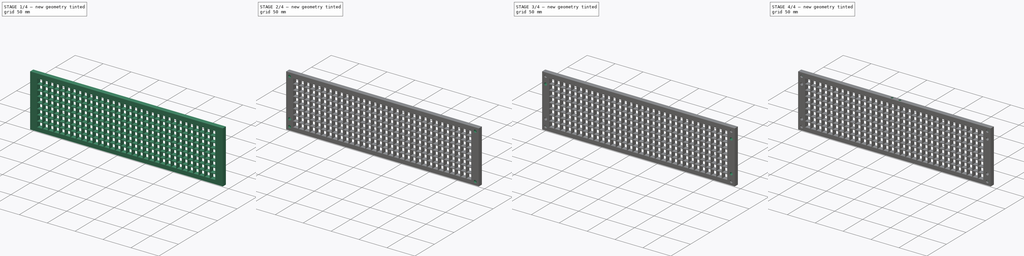
[diagram: build sequence overview — one tinted view per stage of 4, left to right]
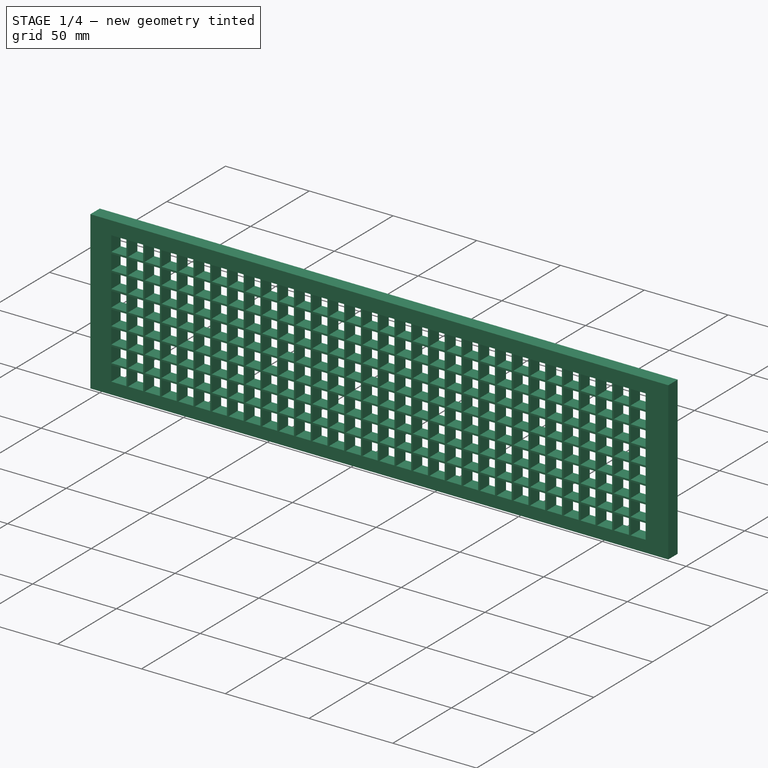
[diagram: stage 1 of 4 — iso view after this stage's code; geometry added in this stage tinted green]
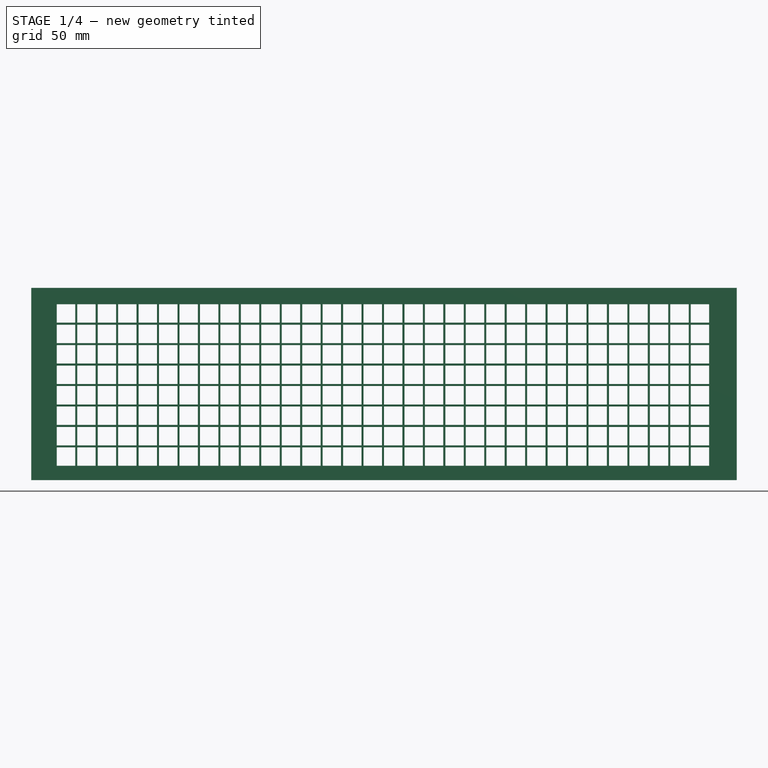
[diagram: stage 1 of 4 — front view after this stage's code; geometry added in this stage tinted green]
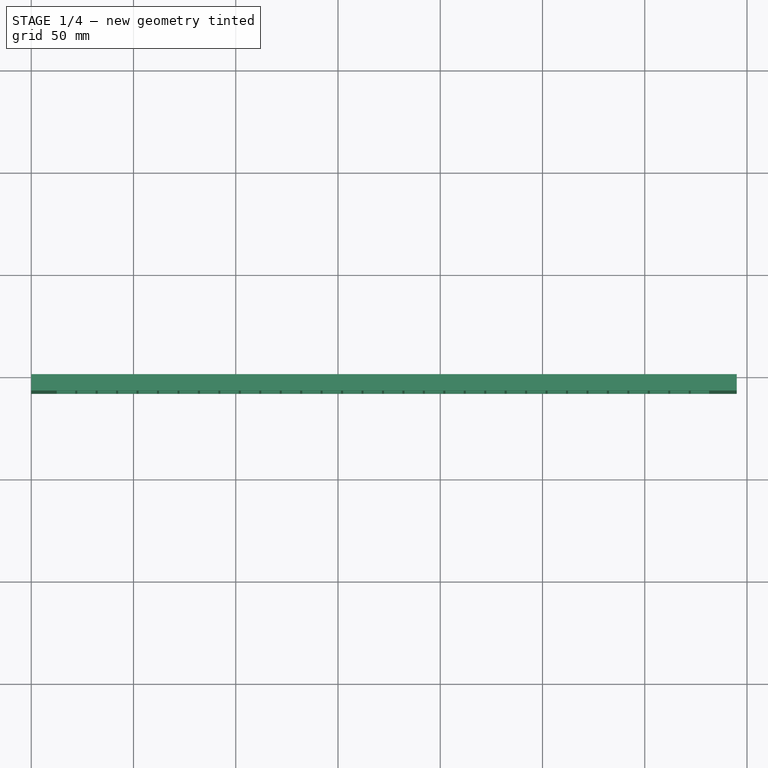
[diagram: stage 1 of 4 — top view after this stage's code; geometry added in this stage tinted green]
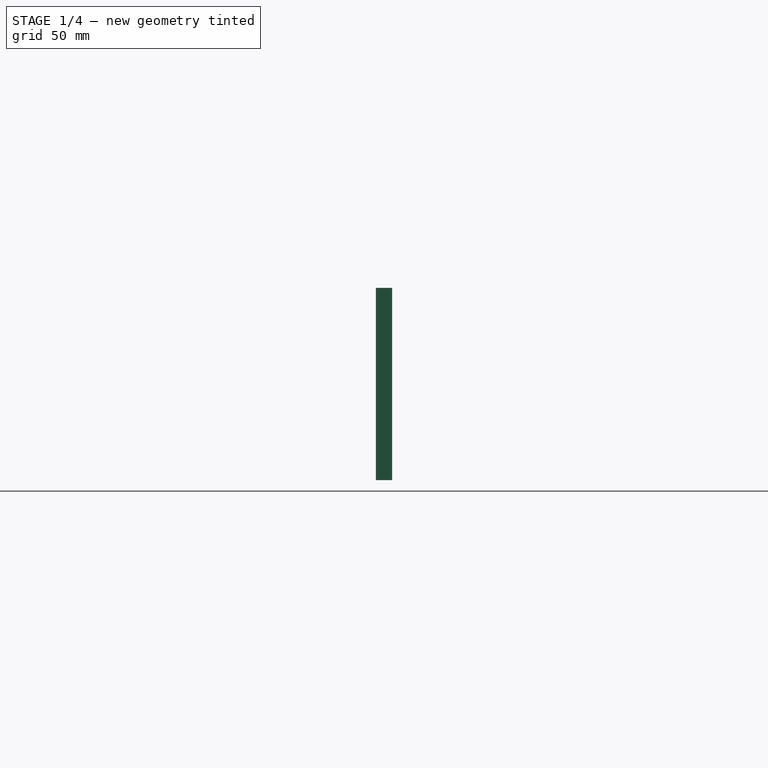
[diagram: stage 1 of 4 — right view after this stage's code; geometry added in this stage tinted green]
FCSTD DOCUMENT  (FreeCAD 1.0R39109 (Git))
Label: grid
License: All rights reserved
LicenseURL: https://en.wikipedia.org/wiki/All_rights_reserved
objects: Sketcher::SketchObject×7, PartDesign::Mirrored×6, PartDesign::Pocket×6, PartDesign::Plane×4, PartDesign::MultiTransform×4, Spreadsheet::Sheet×2, PartDesign::LinearPattern×2, PartDesign::Pad×1, PartDesign::Body×1
note: 64 computed .brp shape members not serialized (recipe doc carries the construction recipe); baked Part::Feature solids carry a one-line shape summary decoded from their .brp

FEATURE [Spreadsheet::Sheet] Spreadsheet  label="GridDisplaySS"
  Body = 0
  cells = A1='Variant; B1='case_depth; C1='matrix_height; D1='matrix_width; E1='matrix_depth; F1='threaded_insert_depth; G1='threaded_insert_outer_diameter; H1='threaded_insert_safety_zone; I1='case_thickness; J1='grid_border_thickness; K1='grid_depth; L1='grid_intercell_spacing; M1='grid_cell_width; N1='led_x_count; O1='led_y_count; P1='grid_countersink_hole_depth; Q1='magnet_diameter; R1='magnet_height; S1='printer_tolerance_modifier; T1='screw_diameter; U1='mount_panel_exclusion_offset; V1='glass_thickness; W1='top_component_offset; X1='photoresistor_diameter; Y1='photoresistor_truncated_width; Z1='photoresistor_height; AA1='top_component_horizontal_offset; AB1='top_component_spacing; AC1='photoresistor_ledge_size; AD1='back_plate_thickness; A2==hiddenref(.Body.String); B2(case_depth)==.B3; C2(matrix_height)==.C3; D2(matrix_width)==.D3; E2(matrix_depth)==.E3; F2(threaded_insert_depth)==.F3; G2(threaded_insert_outer_diameter)==.G3; H2(threaded_insert_safety_zone)==.H3; I2(case_thickness)==.I3; J2(grid_border_thickness)==.J3; K2(grid_depth)==.K3; L2(grid_intercell_spacing)==.L3; M2(grid_cell_width)==.M3; N2(led_x_count)==.N3; O2(led_y_count)==.O3; P2(grid_countersink_hole_depth)==.P3; Q2(magnet_diameter)==.Q3; R2(magnet_height)==.R3; S2(printer_tolerance_modifier)==.S3; T2(screw_diameter)==.T3; U2(mount_panel_exclusion_offset)==.U3; V2(glass_thickness)==.V3; W2(top_component_offset)==.W3; X2(photoresistor_diameter)==.X3; Y2(photoresistor_truncated_width)==.Y3; Z2(photoresistor_height)==.Z3; AA2(top_component_horizontal_offset)==.AA3; AB2(top_component_spacing)==.AB3; AC2(photoresistor_ledge_size)==.AC3; AD2(back_plate_thickness)==.AD3; A3='A; B3==6 cm; C3==80 mm; D3==320 mm; E3==2 mm; F3==4 mm; G3==5 mm; H3==2 mm; I3==2 mm; J3==3 mm; K3==8 mm; L3==1 mm; M3==9 mm; N3=32; O3=8; P3==3 mm; Q3==5 mm; R3==2.8 mm; S3==1 mm; T3==2 mm; U3==2 cm; V3==3 mm; W3==2 cm; X3==5.1 mm; Y3==4.5 mm; Z3==2.4 mm; AA3==2 cm; AB3==0.5 cm; AC3==3 mm; AD3==4 mm
  expr: .Body.Enum = cells[<<A3:|>>]
  expr: .cells.Bind.B2.ZZ2 = tuple(.cells; <<B>> + str(hiddenref(Body) + 3); <<ZZ>> + str(hiddenref(Body) + 3))
FEATURE [Spreadsheet::Sheet] Spreadsheet001  label="GridCalculatedSS"
  cells = B1='grid_horizontal_padding; C1='grid_vertical_padding; D1='case_height; E1='case_width; F1='grid_width; G1='grid_height; H1='grid_matrix_width; I1='grid_matrix_height; J1='screw_horizontal_offset; K1='screw_vertical_offset; L1='grid_magnet_vertical_offset; M1='grid_magnet_horizontal_offset; N1='grid_magnet_depth; O1='case_clear_opening_height; P1='case_clear_opening_width; Q1='mounting_plate_thickness; R1='mount_bracket_face_size; S1='case_relative_magnet_horizontal_offset; T1='case_relative_magnet_vertical_offset; U1='split_offset; V1='screw_offset; W1='screw_diameter; X1='screw_depth; B2(grid_horizontal_padding)==<<GridDisplaySS>>.threaded_insert_outer_diameter + <<GridDisplaySS>>.threaded_insert_safety_zone * 2 + <<GridDisplaySS>>.grid_border_thickness + <<GridDisplaySS>>.grid_intercell_spacing / 2; C2(grid_vertical_padding)==screw_depth + 2 mm; D2(case_height)==grid_height + <<GridDisplaySS>>.case_thickness * 2; E2(case_width)==grid_width + <<GridDisplaySS>>.case_thickness * 2; F2(grid_width)==grid_horizontal_padding * 2 + <<GridDisplaySS>>.matrix_width; G2(grid_height)==grid_vertical_padding * 2 + <<GridDisplaySS>>.matrix_height; H2(grid_matrix_width)==grid_width - 2 * grid_horizontal_padding - 10 mm; I2(grid_matrix_height)=70; J2(screw_horizontal_offset)==grid_horizontal_padding / 2; K2(screw_vertical_offset)==mount_bracket_face_size / 2; L2(grid_magnet_vertical_offset)==grid_height / 5; M2(grid_magnet_horizontal_offset)==grid_horizontal_padding / 2; N2(grid_magnet_depth)==<<GridDisplaySS>>.magnet_height * 2; O2(case_clear_opening_height)==grid_height; P2(case_clear_opening_width)==grid_width; Q2(mounting_plate_thickness)==<<GridDisplaySS>>.matrix_depth + 3 mm; R2(mount_bracket_face_size)==screw_horizontal_offset * 2; S2(case_relative_magnet_horizontal_offset)==grid_magnet_horizontal_offset + <<GridDisplaySS>>.case_thickness; T2(case_relative_magnet_vertical_offset)==grid_magnet_vertical_offset + <<GridDisplaySS>>.case_thickness; U2(split_offset)==grid_width / 2; V2(screw_offset)==screw_diameter + 3 mm; W2(screw_diameter)==4 mm; X2(screw_depth)==5 mm
FEATURE [PartDesign::Plane] DatumPlane003  label="Horizontal Dividing Plane"
  AttachmentOffset = pos=(0,0,-47) rot=(0,0,1;0rad)
  AttachmentSupport = -> [XZ_Plane001]
  Length = 397.203
  MapMode = 3
  Placement = pos=(0,0,47) rot=(1,0,0;3.14159rad)
  ResizeMode = 0
  Width = 77.2029
  expr: .AttachmentOffset.Base.z = <<GridCalculatedSS>>.grid_height / 2 * -1
FEATURE [PartDesign::Mirrored] Mirrored006
  MirrorPlane = -> DatumPlane003
  Placement = pos=(0,0,0) rot=(1,0,0;1.5708rad)
  Refine = true
  Suppressed = false
  TransformMode = 0
FEATURE [PartDesign::Plane] DatumPlane002  label="Vertical Dividing Plane"
  AttachmentOffset = pos=(0,0,172.5) rot=(0,0,1;0rad)
  AttachmentSupport = -> [XZ_Plane001]
  Length = 134.427
  MapMode = 4
  Placement = pos=(172.5,0,-3.83e-14) rot=(0.707107,0,0.707107;3.14159rad)
  ResizeMode = 0
  Width = 65.4272
  expr: .AttachmentOffset.Base.z = <<GridCalculatedSS>>.grid_width / 2
FEATURE [PartDesign::Mirrored] Mirrored007
  MirrorPlane = -> DatumPlane002
  Placement = pos=(0,0,0) rot=(1,0,0;1.5708rad)
  Refine = true
  Suppressed = false
  TransformMode = 0
FEATURE [PartDesign::Plane] DatumPlane001  label="Grid Face Plane"
  AttachmentOffset = pos=(0,0,8) rot=(0,0,1;0rad)
  AttachmentSupport = -> [XZ_Plane001]
  Length = 411.967
  MapMode = 2
  Placement = pos=(0,-8,1.8e-15) rot=(1,0,0;1.5708rad)
  ResizeMode = 0
  Width = 160.967
  expr: .AttachmentOffset.Base.z = <<GridDisplaySS>>.grid_depth
FEATURE [Sketcher::SketchObject] Sketch017  label="ScrewHole"
  ArcFitTolerance = 1e-06
  AttachmentSupport = -> [DatumPlane001]
  FullyConstrained = true
  MakeInternals = false
  MapMode = 5
  Placement = pos=(0,-8,1.8e-15) rot=(1,0,0;1.5708rad)
  expr: Constraints[0] = <<GridDisplaySS>>.screw_diameter
  expr: Constraints[1] = <<GridCalculatedSS>>.screw_horizontal_offset
  expr: Constraints[2] = <<GridCalculatedSS>>.screw_vertical_offset
  sketch-geometry (1):
    g0: Circle CenterX=6.25 CenterY=6.25 CenterZ=0 NormalX=0 NormalY=0 NormalZ=1 AngleXU=0 Radius=1
  constraints (3):
    c: Diameter(g0) = 2
    c: DistanceX(g-2,g0) = 6.25
    c: DistanceY(g-1,g0) = 6.25
FEATURE [PartDesign::Mirrored] Mirrored002
  MirrorPlane = -> DatumPlane003
  Placement = pos=(0,0,0) rot=(1,0,0;1.5708rad)
  Refine = true
  Suppressed = false
  TransformMode = 0
FEATURE [PartDesign::Mirrored] Mirrored003
  MirrorPlane = -> DatumPlane002
  Placement = pos=(0,0,0) rot=(1,0,0;1.5708rad)
  Refine = true
  Suppressed = false
  TransformMode = 0
FEATURE [Sketcher::SketchObject] Sketch005  label="Magnet Hole"
  ArcFitTolerance = 1e-06
  AttachmentSupport = -> [DatumPlane001]
  FullyConstrained = true
  MakeInternals = false
  MapMode = 5
  Placement = pos=(0,-8,1.8e-15) rot=(1,0,0;1.5708rad)
  expr: Constraints[0] = <<GridCalculatedSS>>.grid_magnet_horizontal_offset
  expr: Constraints[1] = <<GridCalculatedSS>>.grid_magnet_vertical_offset
  expr: Constraints[2] = <<GridDisplaySS>>.magnet_diameter
  sketch-geometry (1):
    g0: Circle CenterX=6.25 CenterY=18.8 CenterZ=0 NormalX=0 NormalY=0 NormalZ=1 AngleXU=0 Radius=2.5
  constraints (3):
    c: DistanceX(g-2,g0) = 6.25
    c: DistanceY(g-1,g0) = 18.8
    c: Diameter(g0) = 5
FEATURE [PartDesign::Mirrored] Mirrored
  MirrorPlane = -> DatumPlane003
  Placement = pos=(0,0,0) rot=(1,0,0;1.5708rad)
  Refine = true
  Suppressed = false
  TransformMode = 0
FEATURE [PartDesign::Mirrored] Mirrored001
  MirrorPlane = -> DatumPlane002
  Placement = pos=(0,0,0) rot=(1,0,0;1.5708rad)
  Refine = true
  Suppressed = false
  TransformMode = 0
FEATURE [Sketcher::SketchObject] Sketch004
  ArcFitTolerance = 1e-06
  AttachmentSupport = -> [DatumPlane001]
  FullyConstrained = true
  MakeInternals = false
  MapMode = 5
  Placement = pos=(0,-8,1.8e-15) rot=(1,0,0;1.5708rad)
  expr: Constraints[0] = <<GridCalculatedSS>>.screw_vertical_offset
  expr: Constraints[1] = <<GridCalculatedSS>>.screw_horizontal_offset
  expr: Constraints[2] = <<GridDisplaySS>>.threaded_insert_outer_diameter
  sketch-geometry (1):
    g0: Circle CenterX=6.25 CenterY=6.25 CenterZ=0 NormalX=0 NormalY=0 NormalZ=1 AngleXU=0 Radius=2.5
  constraints (3):
    c: DistanceY(g-1,g0) = 6.25
    c: DistanceX(g-2,g0) = 6.25
    c: Diameter(g0) = 5
FEATURE [Sketcher::SketchObject] Sketch003
  ArcFitTolerance = 1e-06
  AttachmentSupport = -> [DatumPlane001]
  FullyConstrained = true
  MakeInternals = false
  MapMode = 5
  Placement = pos=(0,-8,1.8e-15) rot=(1,0,0;1.5708rad)
  expr: Constraints[10] = <<GridDisplaySS>>.grid_cell_width
  expr: Constraints[11] = <<GridDisplaySS>>.grid_cell_width
  expr: Constraints[8] = <<GridCalculatedSS>>.grid_horizontal_padding
  expr: Constraints[9] = <<GridCalculatedSS>>.grid_vertical_padding
  sketch-geometry (4):
    g0: LineSegment StartX=12.5 StartY=7 StartZ=0 EndX=21.5 EndY=7 EndZ=0
    g1: LineSegment StartX=21.5 StartY=7 StartZ=0 EndX=21.5 EndY=16 EndZ=0
    g2: LineSegment StartX=21.5 StartY=16 StartZ=0 EndX=12.5 EndY=16 EndZ=0
    g3: LineSegment StartX=12.5 StartY=16 StartZ=0 EndX=12.5 EndY=7 EndZ=0
  constraints (12):
    c: Coincident(g0,g1)
    c: Coincident(g1,g2)
    c: Coincident(g2,g3)
    c: Coincident(g3,g0)
    c: Horizontal(g0)
    c: Horizontal(g2)
    c: Vertical(g1)
    c: Vertical(g3)
    c: DistanceX(g-2,g0) = 12.5
    c: DistanceY(g-1,g0) = 7
    c: Distance(g0) = 9
    c: Distance(g1) = 9
FEATURE [PartDesign::LinearPattern] LinearPattern
  Direction = -> Sketch003 [H_Axis]
  Length = 310
  Mode = 0
  Occurrences = 32
  Offset = 10
  Placement = pos=(0,0,0) rot=(1,0,0;1.5708rad)
  Refine = true
  Suppressed = false
  TransformMode = 0
  expr: Length = <<GridCalculatedSS>>.grid_matrix_width
  expr: Occurrences = <<GridDisplaySS>>.led_x_count
FEATURE [PartDesign::LinearPattern] LinearPattern001
  Direction = -> Sketch003 [V_Axis]
  Length = 70
  Mode = 0
  Occurrences = 8
  Offset = 10
  Placement = pos=(0,0,0) rot=(1,0,0;1.5708rad)
  Refine = true
  Suppressed = false
  TransformMode = 0
  expr: Length = <<GridCalculatedSS>>.grid_matrix_height
  expr: Occurrences = <<GridDisplaySS>>.led_y_count
FEATURE [Sketcher::SketchObject] Sketch002
  ArcFitTolerance = 1e-06
  AttachmentSupport = -> [XZ_Plane001]
  FullyConstrained = true
  MakeInternals = false
  MapMode = 5
  Placement = pos=(0,0,0) rot=(1,0,0;1.5708rad)
  expr: Constraints[10] = <<GridCalculatedSS>>.grid_height
  expr: Constraints[9] = <<GridCalculatedSS>>.grid_width
  sketch-geometry (4):
    g0: LineSegment StartX=0 StartY=0 StartZ=0 EndX=345 EndY=0 EndZ=0
    g1: LineSegment StartX=345 StartY=0 StartZ=0 EndX=345 EndY=94 EndZ=0
    g2: LineSegment StartX=345 StartY=94 StartZ=0 EndX=0 EndY=94 EndZ=0
    g3: LineSegment StartX=0 StartY=94 StartZ=0 EndX=0 EndY=0 EndZ=0
  constraints (11):
    c: Coincident(g0,g1)
    c: Coincident(g1,g2)
    c: Coincident(g2,g3)
    c: Coincident(g3,g0)
    c: Horizontal(g0)
    c: Horizontal(g2)
    c: Vertical(g1)
    c: Vertical(g3)
    c: Coincident(g0,g-1)
    c: Distance(g0) = 345
    c: Distance(g3) = 94
FEATURE [PartDesign::Pad] Pad001
  Direction = (0,-1,2e-16)
  Length = 8
  Length2 = 10
  Placement = pos=(0,0,0) rot=(1,0,0;1.5708rad)
  Profile = -> Sketch002
  ReferenceAxis = -> Sketch002 [N_Axis]
  Refine = true
  Suppressed = false
  Type = 0
  expr: Length = <<GridDisplaySS>>.grid_depth
FEATURE [PartDesign::Pocket] Pocket001  label="GridCellPocket"
  BaseFeature = -> Pad001
  Direction = (0,1,-2e-16)
  Length = 8
  Length2 = 5
  Placement = pos=(0,0,0) rot=(1,0,0;1.5708rad)
  Profile = -> Sketch003
  ReferenceAxis = -> Sketch003 [N_Axis]
  Refine = true
  Suppressed = false
  Type = 0
  expr: Length = <<GridDisplaySS>>.grid_depth
FEATURE [PartDesign::MultiTransform] MultiTransform  label="GridCells"
  BaseFeature = -> Pocket001
  Originals = -> [Pocket001]
  Placement = pos=(0,0,0) rot=(1,0,0;1.5708rad)
  Refine = true
  Suppressed = false
  TransformMode = 0
  Transformations = -> [LinearPattern,LinearPattern001]
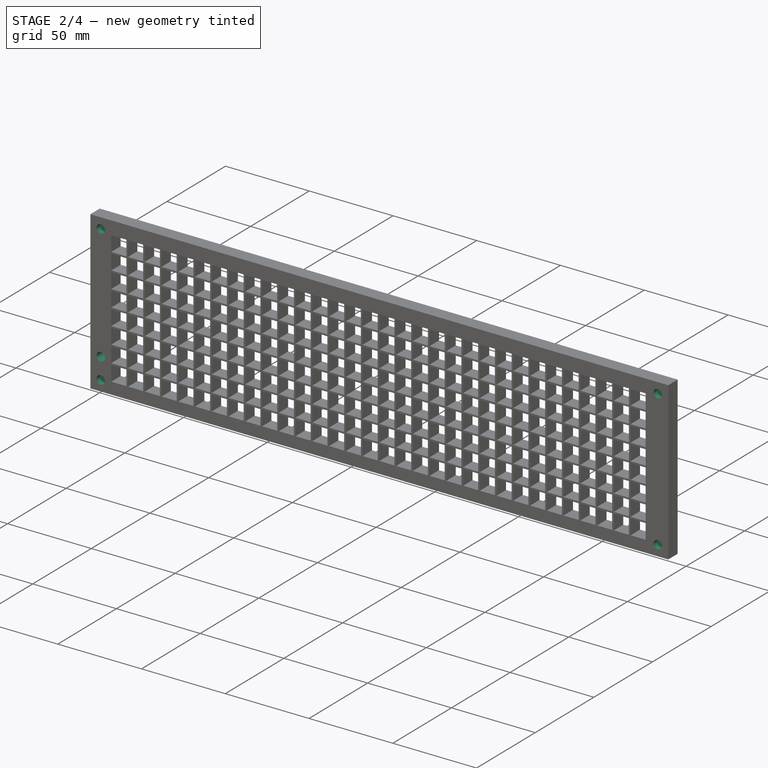
[diagram: stage 2 of 4 — iso view after this stage's code; geometry added in this stage tinted green]
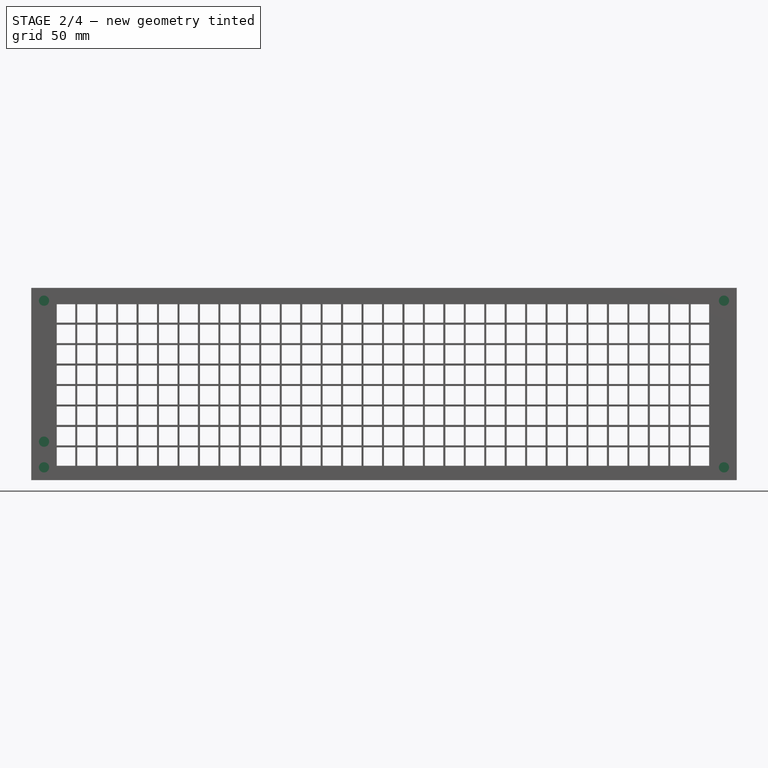
[diagram: stage 2 of 4 — front view after this stage's code; geometry added in this stage tinted green]
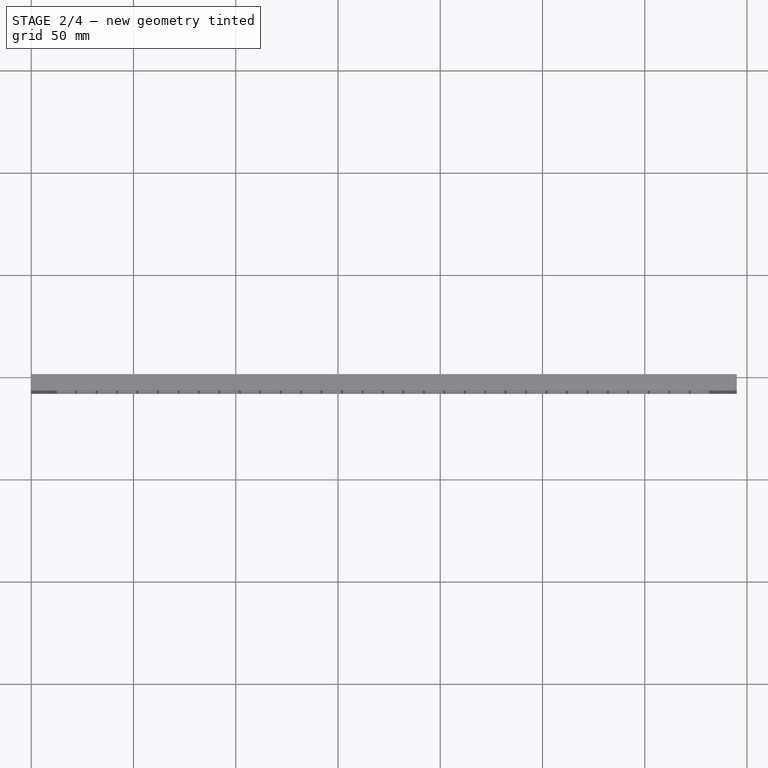
[diagram: stage 2 of 4 — top view after this stage's code; geometry added in this stage tinted green]
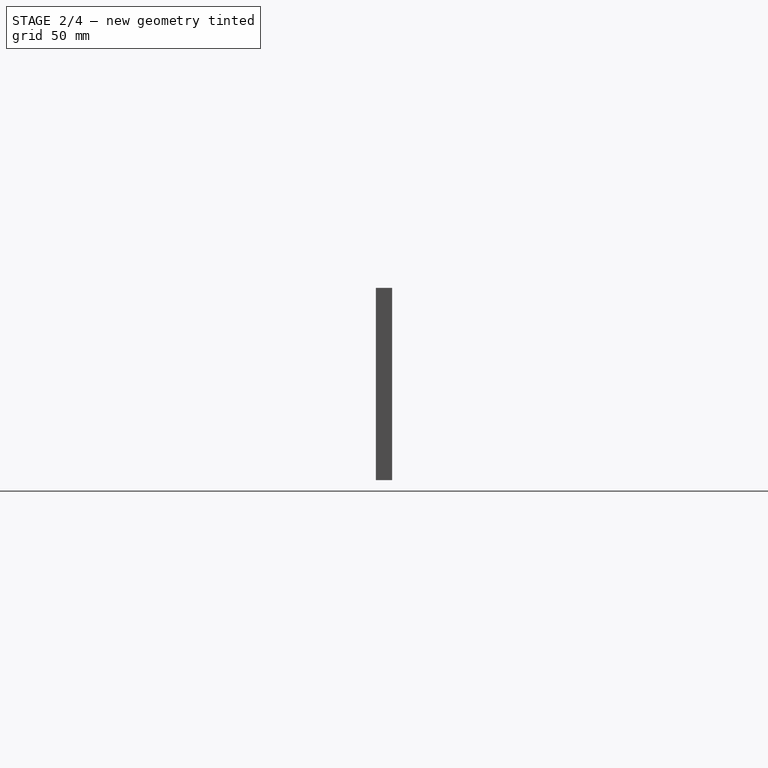
[diagram: stage 2 of 4 — right view after this stage's code; geometry added in this stage tinted green]
FEATURE [PartDesign::Pocket] Pocket002  label="ScrewCountersink"
  BaseFeature = -> MultiTransform
  Direction = (0,1,-2e-16)
  Length = 3
  Length2 = 5
  Placement = pos=(0,0,0) rot=(1,0,0;1.5708rad)
  Profile = -> Sketch004
  ReferenceAxis = -> Sketch004 [N_Axis]
  Refine = true
  Suppressed = false
  Type = 0
  expr: Length = <<GridDisplaySS>>.grid_countersink_hole_depth
FEATURE [PartDesign::MultiTransform] MultiTransform001  label="ScrewCountersinks"
  BaseFeature = -> Pocket002
  Originals = -> [Pocket002]
  Placement = pos=(0,0,0) rot=(1,0,0;1.5708rad)
  Refine = true
  Suppressed = false
  TransformMode = 0
  Transformations = -> [Mirrored,Mirrored001]
FEATURE [PartDesign::Pocket] Pocket003  label="Magnet Hole001"
  BaseFeature = -> MultiTransform001
  Direction = (0,1,-2e-16)
  Length = 5.6
  Length2 = 5
  Placement = pos=(0,0,0) rot=(1,0,0;1.5708rad)
  Profile = -> Sketch005
  ReferenceAxis = -> Sketch005 [N_Axis]
  Refine = true
  Suppressed = false
  Type = 0
  expr: Length = <<GridCalculatedSS>>.grid_magnet_depth
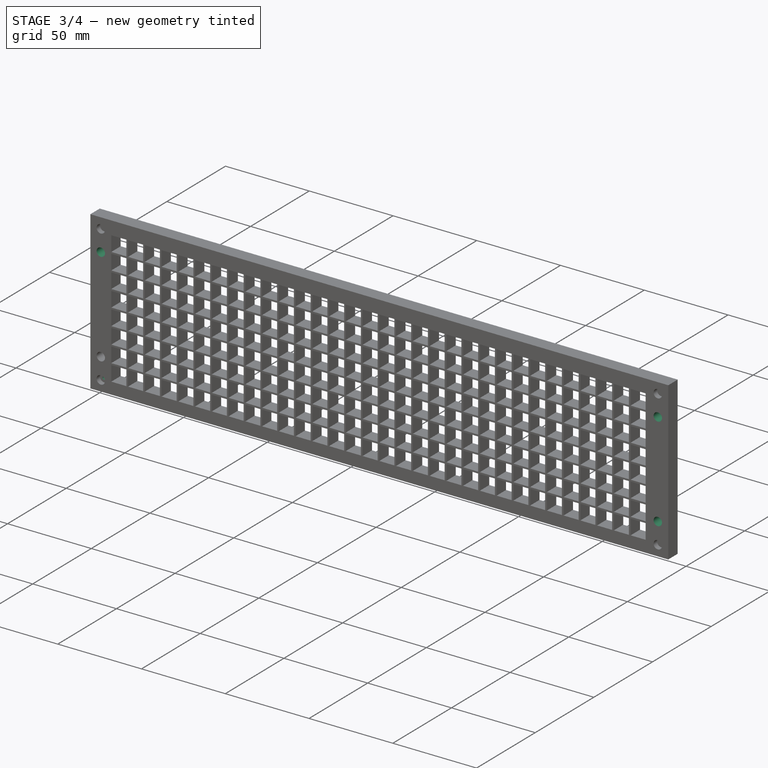
[diagram: stage 3 of 4 — iso view after this stage's code; geometry added in this stage tinted green]
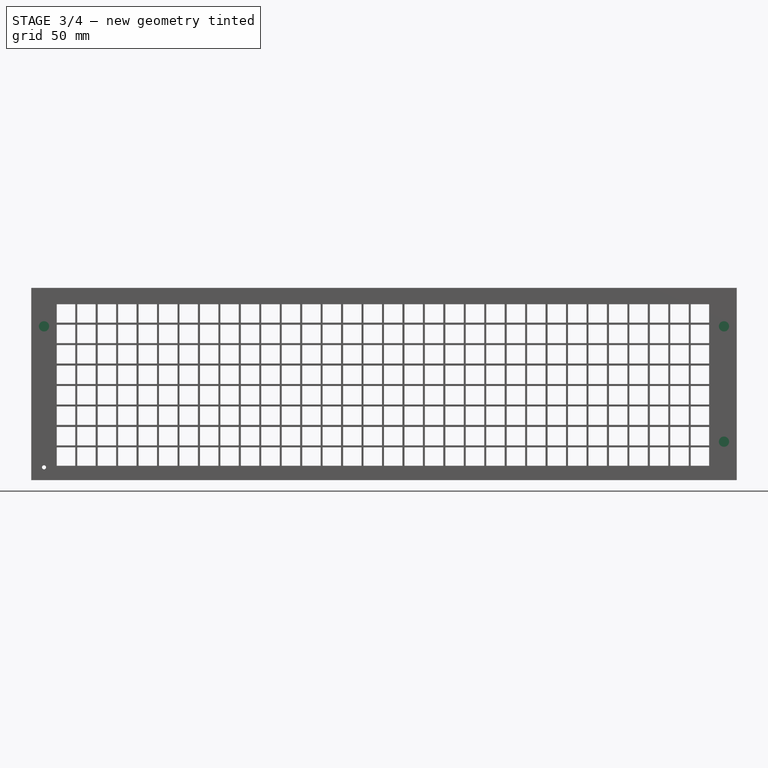
[diagram: stage 3 of 4 — front view after this stage's code; geometry added in this stage tinted green]
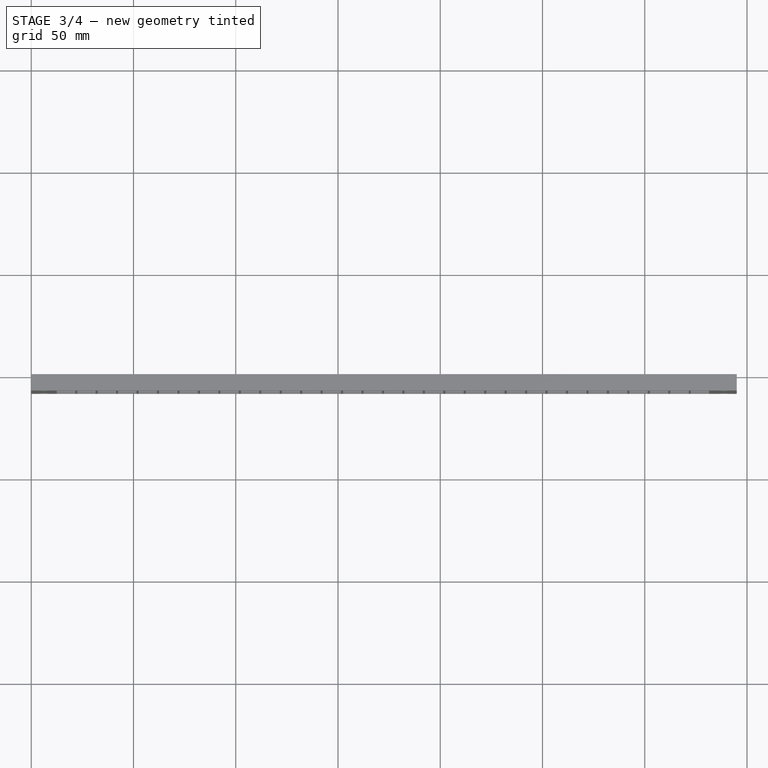
[diagram: stage 3 of 4 — top view after this stage's code; geometry added in this stage tinted green]
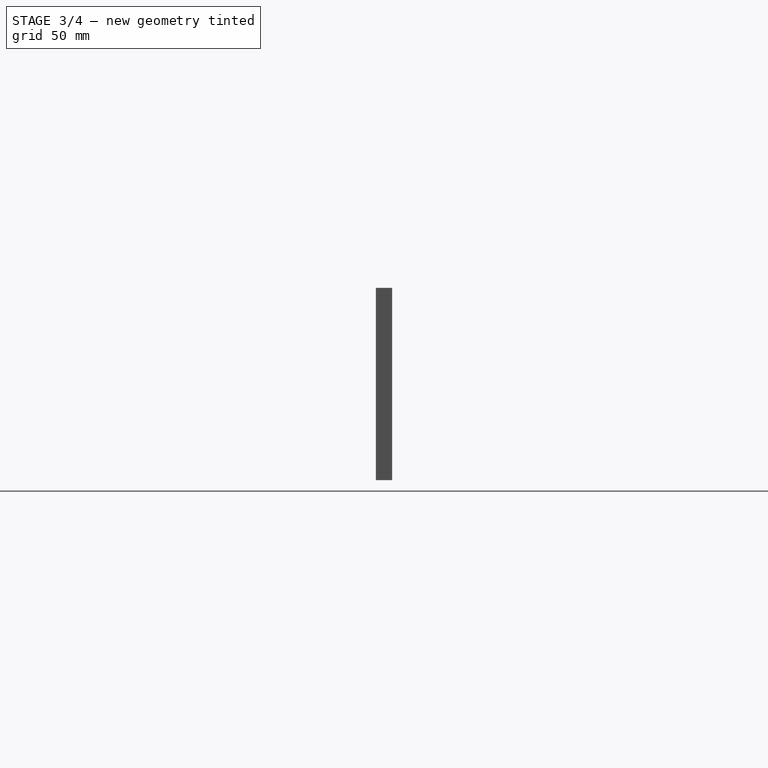
[diagram: stage 3 of 4 — right view after this stage's code; geometry added in this stage tinted green]
FEATURE [PartDesign::MultiTransform] MultiTransform002  label="Magnet Holes"
  BaseFeature = -> Pocket003
  Originals = -> [Pocket003]
  Placement = pos=(0,0,0) rot=(1,0,0;1.5708rad)
  Refine = true
  Suppressed = false
  TransformMode = 0
  Transformations = -> [Mirrored002,Mirrored003]
FEATURE [PartDesign::Pocket] Pocket008  label="ScrewHolePocket"
  BaseFeature = -> MultiTransform002
  Direction = (0,1,-2e-16)
  Length = 5
  Length2 = 5
  Placement = pos=(0,0,0) rot=(1,0,0;1.5708rad)
  Profile = -> Sketch017
  ReferenceAxis = -> Sketch017 [N_Axis]
  Refine = true
  Suppressed = false
  Type = 1
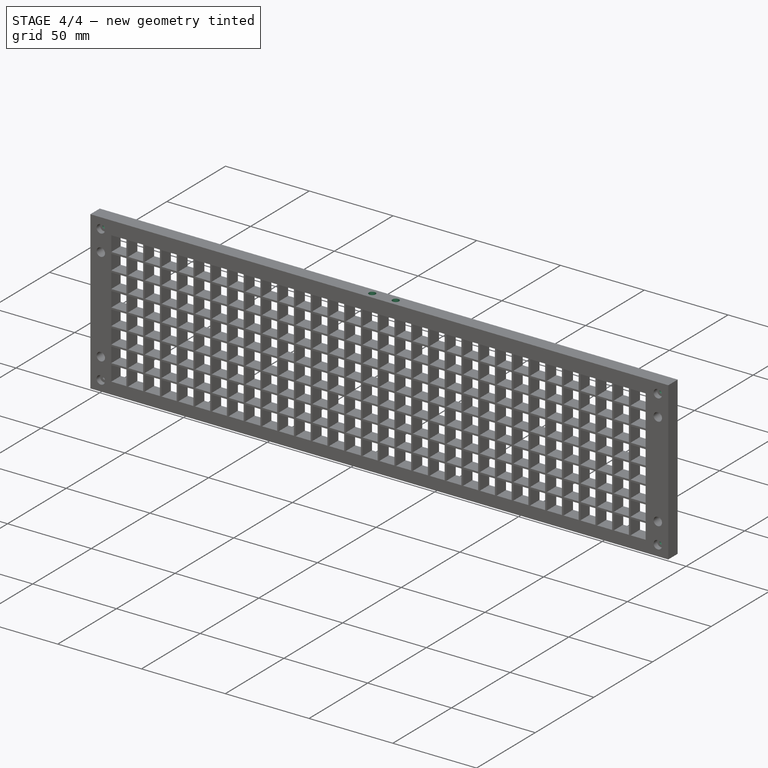
[diagram: stage 4 of 4 — iso view after this stage's code; geometry added in this stage tinted green]
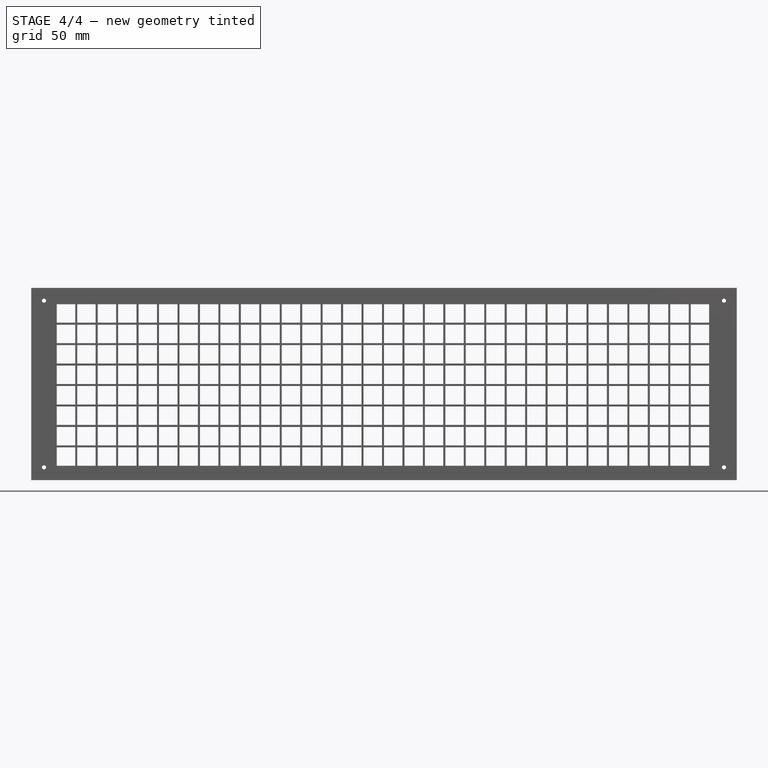
[diagram: stage 4 of 4 — front view after this stage's code; geometry added in this stage tinted green]
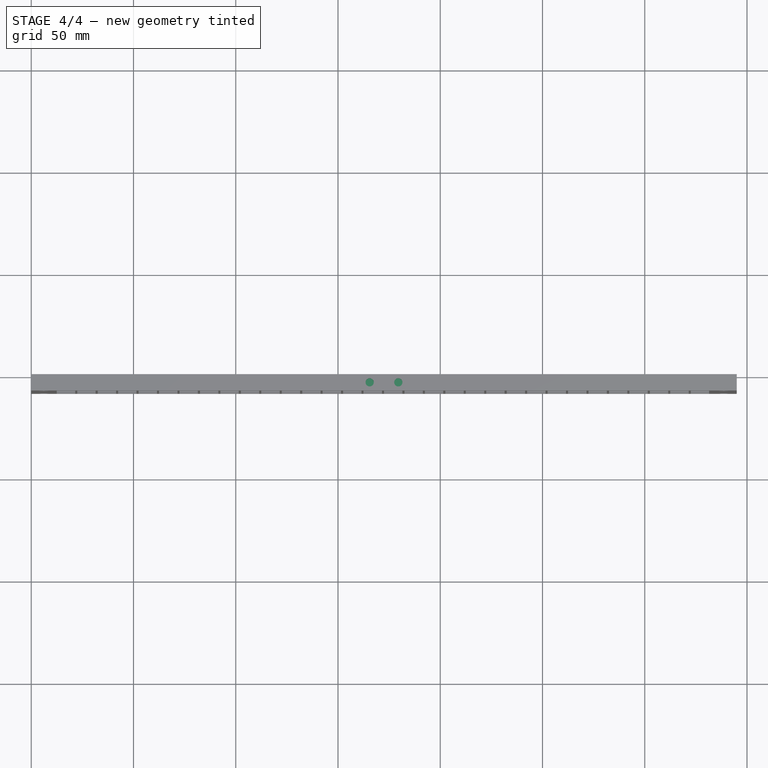
[diagram: stage 4 of 4 — top view after this stage's code; geometry added in this stage tinted green]
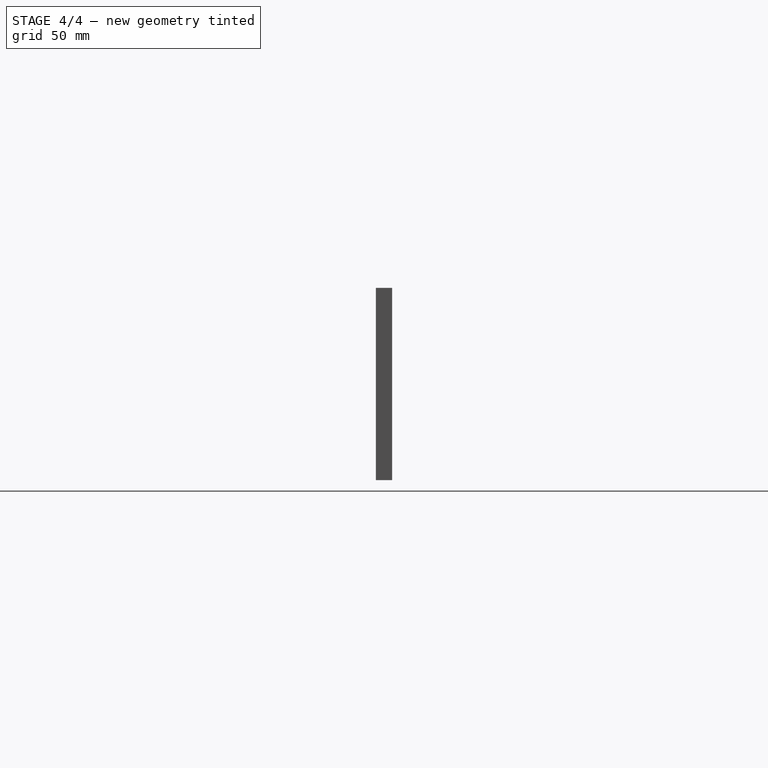
[diagram: stage 4 of 4 — right view after this stage's code; geometry added in this stage tinted green]
FEATURE [PartDesign::MultiTransform] MultiTransform004  label="GridCellTransform"
  BaseFeature = -> Pocket008
  Originals = -> [Pocket008]
  Placement = pos=(0,0,0) rot=(1,0,0;1.5708rad)
  Refine = true
  Suppressed = false
  TransformMode = 0
  Transformations = -> [Mirrored006,Mirrored007]
FEATURE [Sketcher::SketchObject] Sketch
  ArcFitTolerance = 1e-06
  AttachmentSupport = -> [XY_Plane001]
  FullyConstrained = true
  MakeInternals = false
  MapMode = 5
  expr: Constraints[0] = <<GridCalculatedSS>>.screw_diameter
  expr: Constraints[1] = <<GridCalculatedSS>>.screw_diameter
  expr: Constraints[2] = <<GridCalculatedSS>>.split_offset - <<GridCalculatedSS>>.screw_offset
  expr: Constraints[3] = <<GridCalculatedSS>>.screw_offset * 2
  expr: Constraints[4] = <<GridDisplaySS>>.grid_depth / 2 * -1
  sketch-geometry (2):
    g0: Circle CenterX=165.5 CenterY=-4 CenterZ=0 NormalX=0 NormalY=0 NormalZ=1 AngleXU=0 Radius=2
    g1: Circle CenterX=179.5 CenterY=-4 CenterZ=0 NormalX=0 NormalY=0 NormalZ=1 AngleXU=0 Radius=2
  constraints (6):
    c: Diameter(g1) = 4
    c: Diameter(g0) = 4
    c: DistanceX(g-2,g0) = 165.5
    c: Distance(g0,g1) = 14
    c: DistanceY(g-1,g0) = -4
    c: Horizontal(g0,g1)
FEATURE [PartDesign::Pocket] Pocket
  BaseFeature = -> MultiTransform004
  Direction = (0,0,-1)
  Length = 5
  Length2 = 5
  Placement = pos=(0,0,0) rot=(1,0,0;1.5708rad)
  Profile = -> Sketch
  ReferenceAxis = -> Sketch [N_Axis]
  Refine = true
  Reversed = true
  Suppressed = false
  Type = 0
  expr: Length = <<GridCalculatedSS>>.screw_depth
FEATURE [PartDesign::Plane] DatumPlane  label="GridTopPlane"
  AttachmentOffset = pos=(0,0,94) rot=(0,0,1;0rad)
  AttachmentSupport = -> [XY_Plane001]
  Length = 397.203
  MapMode = 5
  Placement = pos=(0,0,94) rot=(0,0,1;0rad)
  ResizeMode = 0
  Width = 77.2029
  expr: .AttachmentOffset.Base.z = <<GridCalculatedSS>>.grid_height
FEATURE [Sketcher::SketchObject] Sketch018
  ArcFitTolerance = 1e-06
  AttachmentSupport = -> [DatumPlane]
  FullyConstrained = true
  MakeInternals = false
  MapMode = 5
  Placement = pos=(0,0,94) rot=(0,0,1;0rad)
  expr: Constraints[0] = Sketch.Constraints[0]
  expr: Constraints[1] = Sketch.Constraints[1]
  expr: Constraints[2] = Sketch.Constraints[2]
  expr: Constraints[3] = Sketch.Constraints[3]
  expr: Constraints[4] = Sketch.Constraints[4]
  sketch-geometry (2):
    g0: Circle CenterX=165.5 CenterY=-4 CenterZ=0 NormalX=0 NormalY=0 NormalZ=1 AngleXU=0 Radius=2
    g1: Circle CenterX=179.5 CenterY=-4 CenterZ=0 NormalX=0 NormalY=0 NormalZ=1 AngleXU=0 Radius=2
  constraints (6):
    c: Diameter(g1) = 4
    c: Diameter(g0) = 4
    c: DistanceX(g-2,g0) = 165.5
    c: Distance(g0,g1) = 14
    c: DistanceY(g-1,g0) = -4
    c: Horizontal(g0,g1)
FEATURE [PartDesign::Pocket] Pocket009
  BaseFeature = -> Pocket
  Direction = (0,0,-1)
  Length = 5
  Length2 = 5
  Placement = pos=(0,0,0) rot=(1,0,0;1.5708rad)
  Profile = -> Sketch018
  ReferenceAxis = -> Sketch018 [N_Axis]
  Refine = true
  Suppressed = false
  Type = 0
  expr: Length = <<GridCalculatedSS>>.screw_depth
FEATURE [PartDesign::Body] Body001  label="Grid"
  AllowCompound = false
  Group = -> [Sketch002,Pad001,DatumPlane001,Sketch003,Pocket001,MultiTransform,LinearPattern,LinearPattern001,Sketch004,Pocket002,DatumPlane002,DatumPlane003,MultiTransform001,Mirrored,Mirrored001,Sketch005,Pocket003,MultiTransform002,Mirrored002,Mirrored003,Sketch017,Pocket008,MultiTransform004,Mirrored006,Mirrored007,Sketch,Pocket,DatumPlane,Sketch018,Pocket009]
  Origin = -> Origin001
  Tip = -> Pocket009
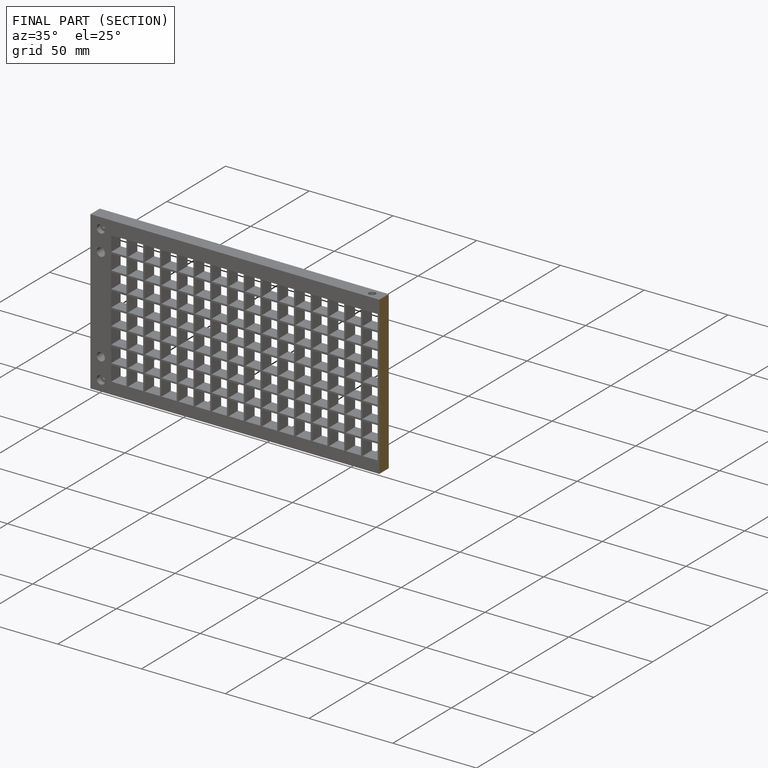
[diagram: finished part — half-section view (interior)]
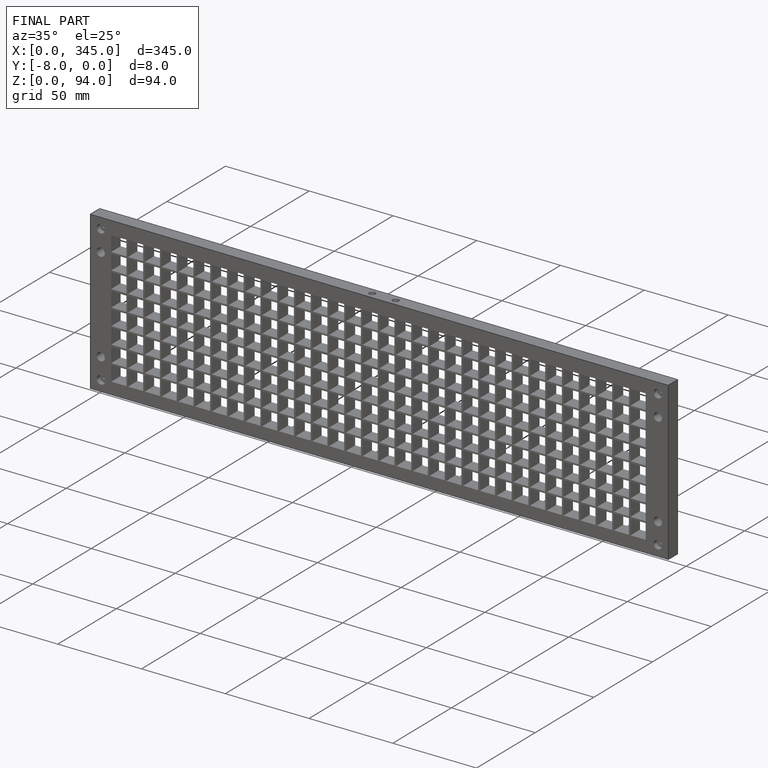
[diagram: finished part — iso view with bounding-box wireframe]
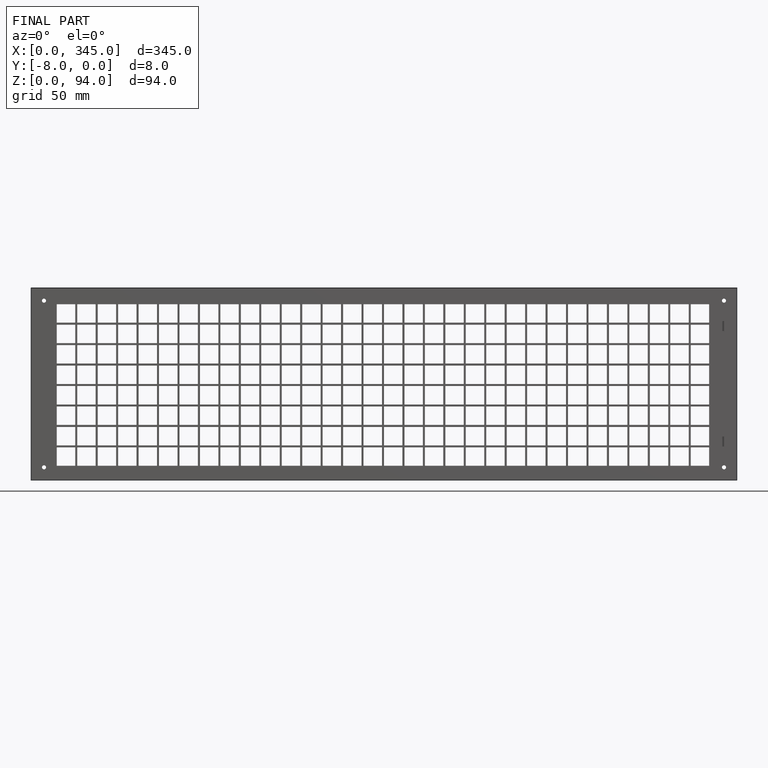
[diagram: finished part — front view with bounding-box wireframe]
